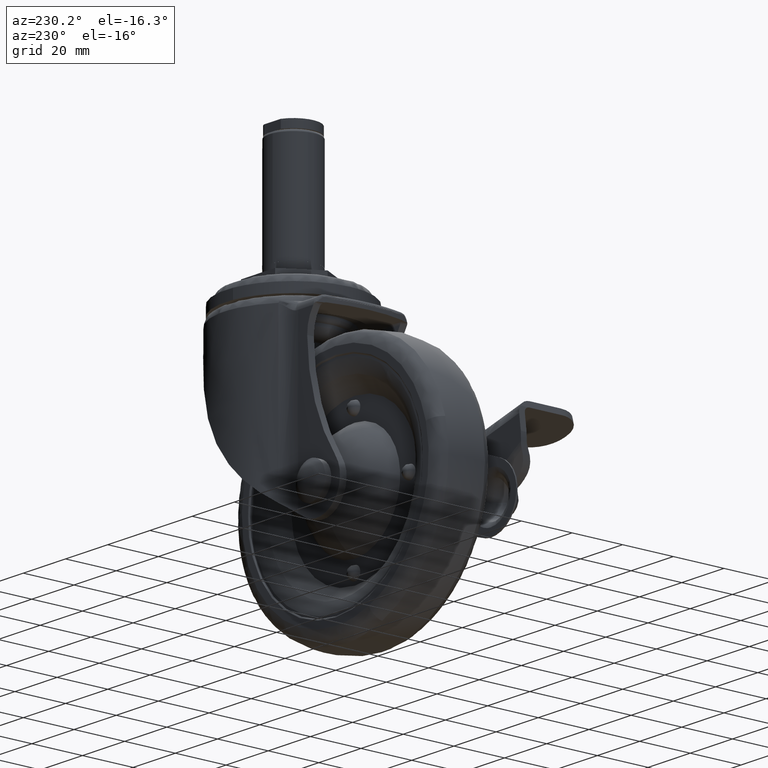
[diagram: clean part render]
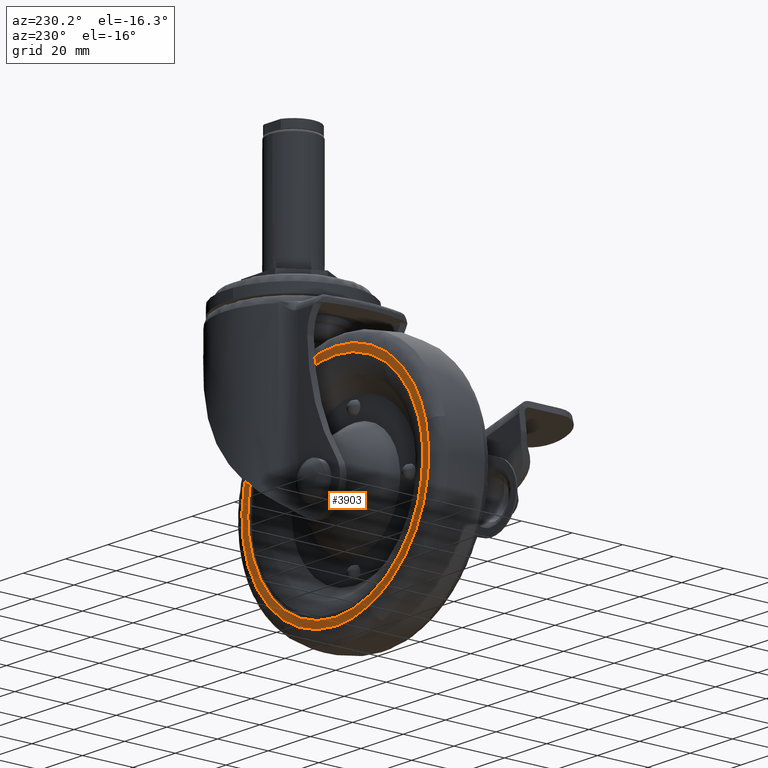
[diagram: same view with one face highlighted and labeled with its STEP entity id]
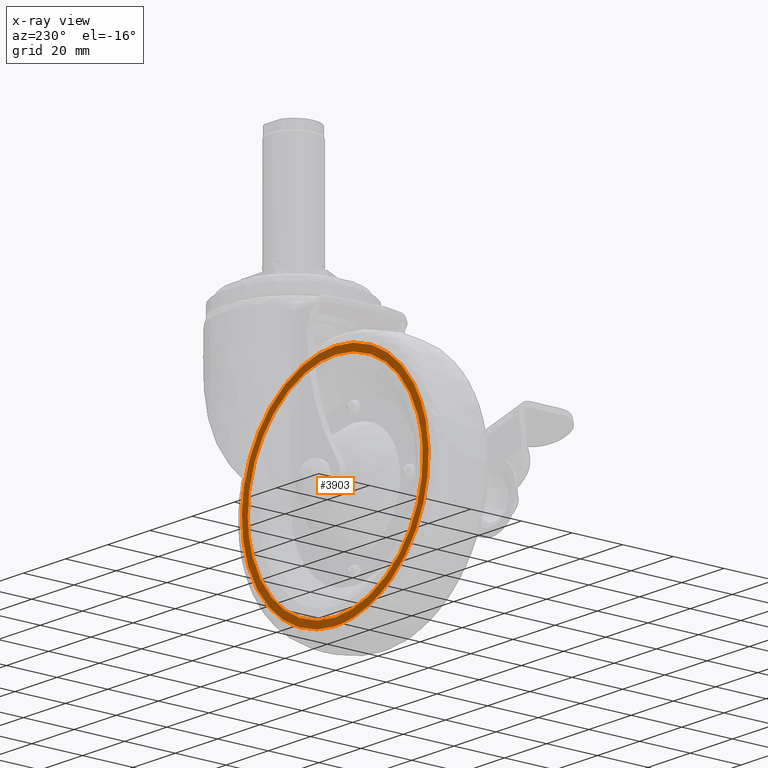
[diagram: x-ray of the same camera — body ghosted, the highlighted face saturated]
A machine part, auxiliary view. The second image highlights one B-rep face of the part: STEP entity #3903.
The next image is the same camera in x-ray: the body ghosted, the highlighted face saturated — about 1% of this face is hidden behind the body in this view.
In plain terms, the highlighted face is a freeform B-spline surface patch.
Its self-contained STEP definition (entity closure, byte-faithful):
#2071=CARTESIAN_POINT('',(8.497136304196795,11.000014999999900,-74.521957655203934));
#2072=VERTEX_POINT('',#2071);
#2086=CARTESIAN_POINT('',(-32.999587000000091,11.000014999999900,-115.500467000000000));
#2087=VERTEX_POINT('',#2086);
#2088=CARTESIAN_POINT('',(-32.999587000000091,11.000014999999900,-115.500467000000000));
#2089=CARTESIAN_POINT('',(7.982158090313859,11.000014999999898,-115.500467000000000));
#2090=CARTESIAN_POINT('',(8.497136304196795,11.000014999999904,-74.521957655203934));
#2098=(BOUNDED_CURVE()B_SPLINE_CURVE(2,(#2088,#2089,#2090),.UNSPECIFIED.,.F.,.U.)B_SPLINE_CURVE_WITH_KNOTS((3,3),(0.0,0.247784295918126),.UNSPECIFIED.)CURVE()GEOMETRIC_REPRESENTATION_ITEM()RATIONAL_B_SPLINE_CURVE((1.0,0.709702639988461,0.994854295635720))REPRESENTATION_ITEM(''));
#2099=EDGE_CURVE('',#2087,#2072,#2098,.T.);
#2101=CARTESIAN_POINT('',(-74.398562463698866,11.000014999999900,-71.106537059639010));
#2102=VERTEX_POINT('',#2101);
#2103=CARTESIAN_POINT('',(-74.398562463698866,11.000014999999895,-71.106537059639010));
#2104=CARTESIAN_POINT('',(-74.499587000000091,11.000014999999904,-72.551738691171863));
#2105=CARTESIAN_POINT('',(-74.499587000000091,11.000014999999900,-74.000467000000000));
#2106=CARTESIAN_POINT('',(-74.499587000000091,11.000014999999900,-115.500467000000010));
#2107=CARTESIAN_POINT('',(-32.999587000000091,11.000014999999900,-115.500467000000000));
#2115=(BOUNDED_CURVE()B_SPLINE_CURVE(2,(#2103,#2104,#2105,#2106,#2107),.UNSPECIFIED.,.F.,.U.)B_SPLINE_CURVE_WITH_KNOTS((3,2,3),(0.737833686534906,0.750000000000000,1.0),.UNSPECIFIED.)CURVE()GEOMETRIC_REPRESENTATION_ITEM()RATIONAL_B_SPLINE_CURVE((0.972879876386583,0.985746277152461,1.0,0.707106781186547,1.0))REPRESENTATION_ITEM(''));
#2116=EDGE_CURVE('',#2102,#2087,#2115,.T.);
#2173=CARTESIAN_POINT('',(-32.999587000000091,11.000014999999900,-32.500467000000000));
#2174=VERTEX_POINT('',#2173);
#2175=CARTESIAN_POINT('',(-32.999587000000091,11.000014999999900,-32.500467000000000));
#2176=CARTESIAN_POINT('',(-71.699866161513057,11.000014999999900,-32.500467000000008));
#2177=CARTESIAN_POINT('',(-74.398562463698866,11.000014999999896,-71.106537059639010));
#2185=(BOUNDED_CURVE()B_SPLINE_CURVE(2,(#2175,#2176,#2177),.UNSPECIFIED.,.F.,.U.)B_SPLINE_CURVE_WITH_KNOTS((3,3),(0.500000000000000,0.737833686534905),.UNSPECIFIED.)CURVE()GEOMETRIC_REPRESENTATION_ITEM()RATIONAL_B_SPLINE_CURVE((1.0,0.721360504034088,0.972879876386581))REPRESENTATION_ITEM(''));
#2186=EDGE_CURVE('',#2174,#2102,#2185,.T.);
#2188=CARTESIAN_POINT('',(8.497136304196795,11.000014999999900,-74.521957655203934));
#2189=CARTESIAN_POINT('',(8.500412999999908,11.000014999999896,-74.261222622088496));
#2190=CARTESIAN_POINT('',(8.500412999999908,11.000014999999900,-74.000467000000000));
#2191=CARTESIAN_POINT('',(8.500412999999908,11.000014999999900,-32.500467000000008));
#2192=CARTESIAN_POINT('',(-32.999587000000091,11.000014999999900,-32.500467000000000));
#2200=(BOUNDED_CURVE()B_SPLINE_CURVE(2,(#2188,#2189,#2190,#2191,#2192),.UNSPECIFIED.,.F.,.U.)B_SPLINE_CURVE_WITH_KNOTS((3,2,3),(0.247784295918126,0.250000000000000,0.500000000000000),.UNSPECIFIED.)CURVE()GEOMETRIC_REPRESENTATION_ITEM()RATIONAL_B_SPLINE_CURVE((0.994854295635721,0.997404141198087,1.0,0.707106781186547,1.0))REPRESENTATION_ITEM(''));
#2201=EDGE_CURVE('',#2072,#2174,#2200,.T.);
#2257=CARTESIAN_POINT('',(-48.886328442865320,11.000014999999900,-115.321296330273800));
#2258=VERTEX_POINT('',#2257);
#2259=CARTESIAN_POINT('',(-32.999587000000091,11.000014999999900,-118.270089649078500));
#2260=VERTEX_POINT('',#2259);
#2261=CARTESIAN_POINT('',(-48.886328442865320,11.000014999999898,-115.321296330273770));
#2262=CARTESIAN_POINT('',(-41.216625612168777,11.000014999999896,-118.270089649078470));
#2263=CARTESIAN_POINT('',(-32.999587000000091,11.000014999999900,-118.270089649078500));
#2271=(BOUNDED_CURVE()B_SPLINE_CURVE(2,(#2261,#2262,#2263),.UNSPECIFIED.,.F.,.U.)B_SPLINE_CURVE_WITH_KNOTS((3,3),(0.939060941088178,1.0),.UNSPECIFIED.)CURVE()GEOMETRIC_REPRESENTATION_ITEM()RATIONAL_B_SPLINE_CURVE((0.892016635829760,0.928605451535415,1.0))REPRESENTATION_ITEM(''));
#2272=EDGE_CURVE('',#2258,#2260,#2271,.T.);
#2274=CARTESIAN_POINT('',(-32.999587000000091,11.000014999999900,-29.730844350921551));
#2275=VERTEX_POINT('',#2274);
#2276=CARTESIAN_POINT('',(-32.999587000000091,11.000014999999900,-118.270089649078500));
#2277=CARTESIAN_POINT('',(11.270035649078359,11.000014999999900,-118.270089649078460));
#2278=CARTESIAN_POINT('',(11.270035649078361,11.000014999999900,-74.000467000000000));
#2279=CARTESIAN_POINT('',(11.270035649078359,11.000014999999900,-29.730844350921554));
#2280=CARTESIAN_POINT('',(-32.999587000000091,11.000014999999900,-29.730844350921551));
#2288=(BOUNDED_CURVE()B_SPLINE_CURVE(2,(#2276,#2277,#2278,#2279,#2280),.UNSPECIFIED.,.F.,.U.)B_SPLINE_CURVE_WITH_KNOTS((3,2,3),(0.0,0.250000000000000,0.500000000000000),.UNSPECIFIED.)CURVE()GEOMETRIC_REPRESENTATION_ITEM()RATIONAL_B_SPLINE_CURVE((1.0,0.707106781186548,1.0,0.707106781186548,1.0))REPRESENTATION_ITEM(''));
#2289=EDGE_CURVE('',#2260,#2275,#2288,.T.);
#2291=CARTESIAN_POINT('',(-75.878398051215953,11.000014999999900,-62.991059537381354));
#2292=VERTEX_POINT('',#2291);
#2293=CARTESIAN_POINT('',(-32.999587000000091,11.000014999999900,-29.730844350921551));
#2294=CARTESIAN_POINT('',(-67.338626250457821,11.000014999999900,-29.730844350921544));
#2295=CARTESIAN_POINT('',(-75.878398051215953,11.000014999999895,-62.991059537381354));
#2303=(BOUNDED_CURVE()B_SPLINE_CURVE(2,(#2293,#2294,#2295),.UNSPECIFIED.,.F.,.U.)B_SPLINE_CURVE_WITH_KNOTS((3,3),(0.500000000000000,0.707556761755310),.UNSPECIFIED.)CURVE()GEOMETRIC_REPRESENTATION_ITEM()RATIONAL_B_SPLINE_CURVE((1.0,0.756832127851962,0.917433344551732))REPRESENTATION_ITEM(''));
#2304=EDGE_CURVE('',#2275,#2292,#2303,.T.);
#2416=CARTESIAN_POINT('',(-75.878398051215953,11.000014999999896,-62.991059537381361));
#2417=CARTESIAN_POINT('',(-77.269209649078547,11.000014999999898,-68.407913086488577));
#2418=CARTESIAN_POINT('',(-77.269209649078547,11.000014999999900,-74.000467000000000));
#2419=CARTESIAN_POINT('',(-77.269209649078547,11.000014999999900,-104.408846052614650));
#2420=CARTESIAN_POINT('',(-48.886328442865320,11.000014999999896,-115.321296330273820));
#2428=(BOUNDED_CURVE()B_SPLINE_CURVE(2,(#2416,#2417,#2418,#2419,#2420),.UNSPECIFIED.,.F.,.U.)B_SPLINE_CURVE_WITH_KNOTS((3,2,3),(0.707556761755309,0.750000000000000,0.939060941088178),.UNSPECIFIED.)CURVE()GEOMETRIC_REPRESENTATION_ITEM()RATIONAL_B_SPLINE_CURVE((0.917433344551731,0.950274653334585,1.0,0.778501329651132,0.892016635829761))REPRESENTATION_ITEM(''));
#2429=EDGE_CURVE('',#2292,#2258,#2428,.T.);
#3886=CARTESIAN_POINT('',(-81.689936097684523,11.000014999999900,-122.692623117829000));
#3887=CARTESIAN_POINT('',(-81.689936097684523,11.000014999999900,-25.308306924158320));
#3888=CARTESIAN_POINT('',(15.692487108613751,11.000014999999900,-122.692623117829000));
#3889=CARTESIAN_POINT('',(15.692487108613751,11.000014999999900,-25.308306924158320));
#3890=B_SPLINE_SURFACE_WITH_KNOTS('',1,1,((#3886,#3888),(#3887,#3889)),.UNSPECIFIED.,.F.,.F.,.U.,(2,2),(2,2),(0.0,97.384316193670671),(0.0,97.382423206298270),.UNSPECIFIED.);
#3891=ORIENTED_EDGE('',*,*,#2272,.F.);
#3892=ORIENTED_EDGE('',*,*,#2429,.F.);
#3893=ORIENTED_EDGE('',*,*,#2304,.F.);
#3894=ORIENTED_EDGE('',*,*,#2289,.F.);
#3895=EDGE_LOOP('',(#3891,#3892,#3893,#3894));
#3896=FACE_OUTER_BOUND('',#3895,.T.);
#3897=ORIENTED_EDGE('',*,*,#2099,.T.);
#3898=ORIENTED_EDGE('',*,*,#2201,.T.);
#3899=ORIENTED_EDGE('',*,*,#2186,.T.);
#3900=ORIENTED_EDGE('',*,*,#2116,.T.);
#3901=EDGE_LOOP('',(#3897,#3898,#3899,#3900));
#3902=FACE_BOUND('',#3901,.T.);
#3903=ADVANCED_FACE('',(#3896,#3902),#3890,.T.);